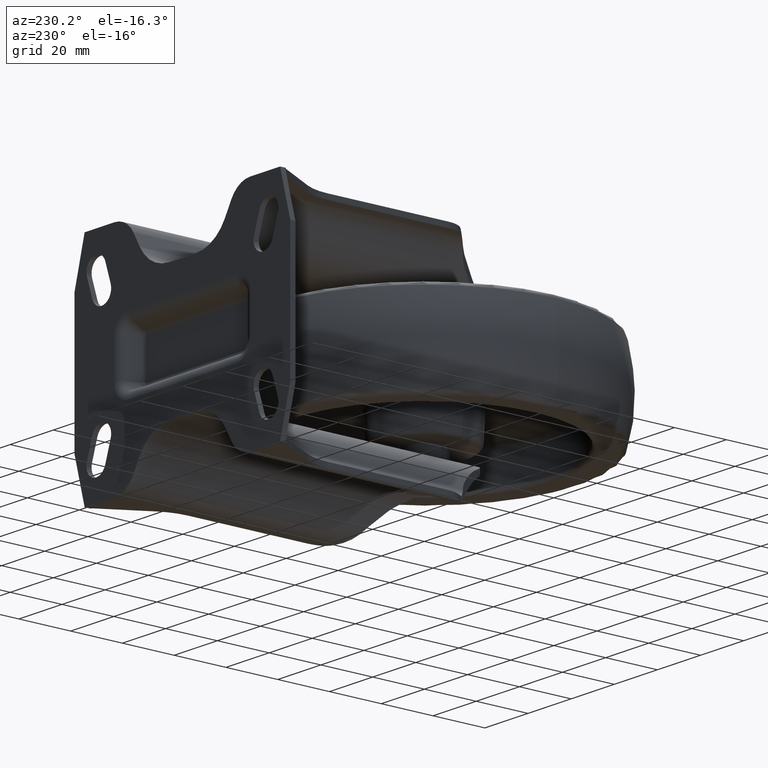
[diagram: clean part render]
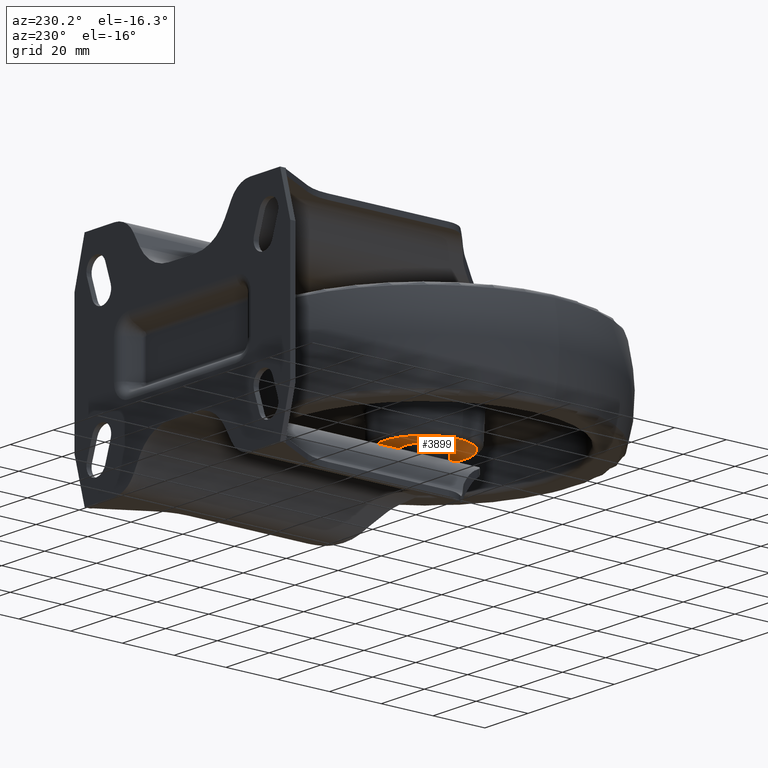
[diagram: same view with one face highlighted and labeled with its STEP entity id]
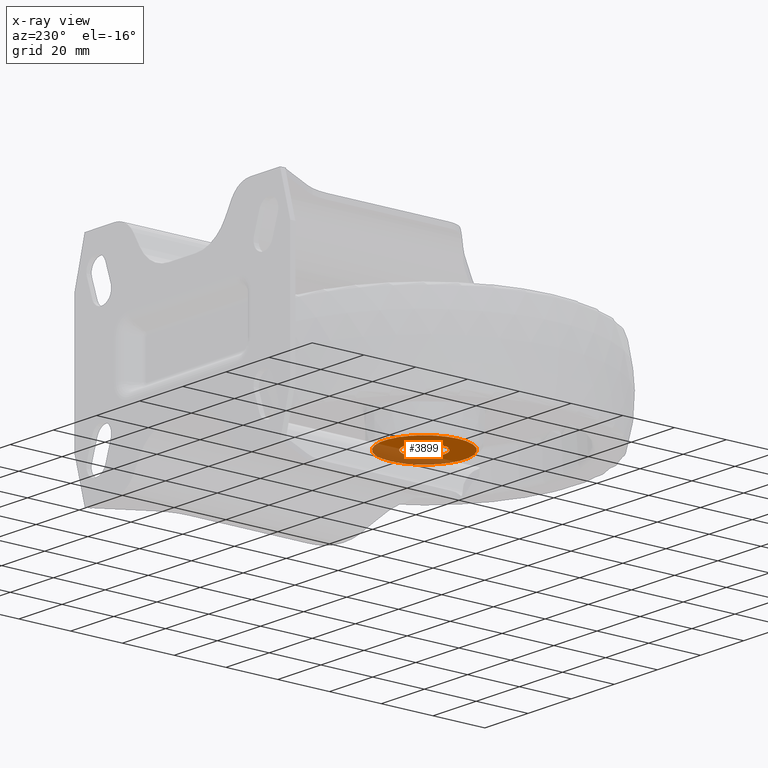
[diagram: x-ray of the same camera — body ghosted, the highlighted face saturated]
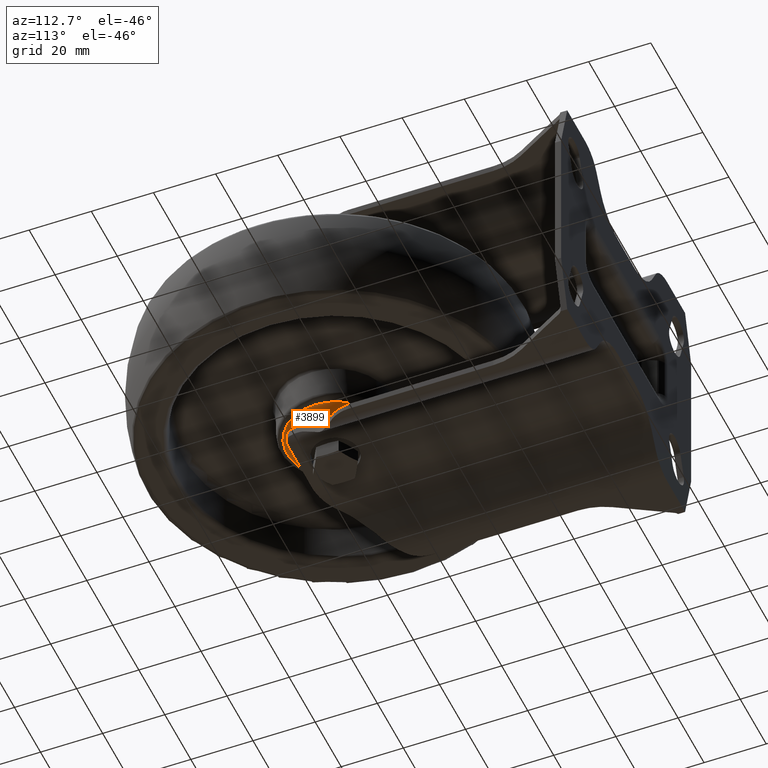
[diagram: same view with one face highlighted and labeled with its STEP entity id]
A machine part, auxiliary view. The second image highlights one B-rep face of the part: STEP entity #3899.
The next image is the same camera in x-ray: the body ghosted, the highlighted face saturated — about 40% of this face is hidden behind the body in this view.
A second angle (auxiliary view) of the same face is appended — the face is thin or edge-on in the first view.
In plain terms, the highlighted planar face has unit normal (0, 0, -1).
Its self-contained STEP definition (entity closure, byte-faithful):
#153=FACE_BOUND('',#1307,.T.);
#250=PLANE('',#4326);
#1065=FACE_OUTER_BOUND('',#1306,.T.);
#1306=EDGE_LOOP('',(#3570));
#1307=EDGE_LOOP('',(#3571));
#1478=CIRCLE('',#4327,15.6020708665702);
#1479=CIRCLE('',#4328,7.5);
#1903=VERTEX_POINT('',#7024);
#1904=VERTEX_POINT('',#7026);
#2462=EDGE_CURVE('',#1903,#1903,#1478,.T.);
#2463=EDGE_CURVE('',#1904,#1904,#1479,.T.);
#3570=ORIENTED_EDGE('',*,*,#2462,.F.);
#3571=ORIENTED_EDGE('',*,*,#2463,.T.);
#3899=ADVANCED_FACE('',(#1065,#153),#250,.T.);
#4326=AXIS2_PLACEMENT_3D('',#7023,#5410,#5411);
#4327=AXIS2_PLACEMENT_3D('',#7025,#5412,#5413);
#4328=AXIS2_PLACEMENT_3D('',#7027,#5414,#5415);
#5410=DIRECTION('center_axis',(0.,0.,-1.));
#5411=DIRECTION('ref_axis',(-1.,0.,0.));
#5412=DIRECTION('center_axis',(0.,0.,1.));
#5413=DIRECTION('ref_axis',(1.,0.,0.));
#5414=DIRECTION('center_axis',(0.,0.,1.));
#5415=DIRECTION('ref_axis',(1.,0.,0.));
#7023=CARTESIAN_POINT('Origin',(15.6020708665702,0.,-17.5));
#7024=CARTESIAN_POINT('',(-15.6020708665702,-1.91070261468154E-15,-17.5));
#7025=CARTESIAN_POINT('Origin',(0.,0.,-17.5));
#7026=CARTESIAN_POINT('',(-7.5,-9.18485099360515E-16,-17.5));
#7027=CARTESIAN_POINT('Origin',(0.,0.,-17.5));